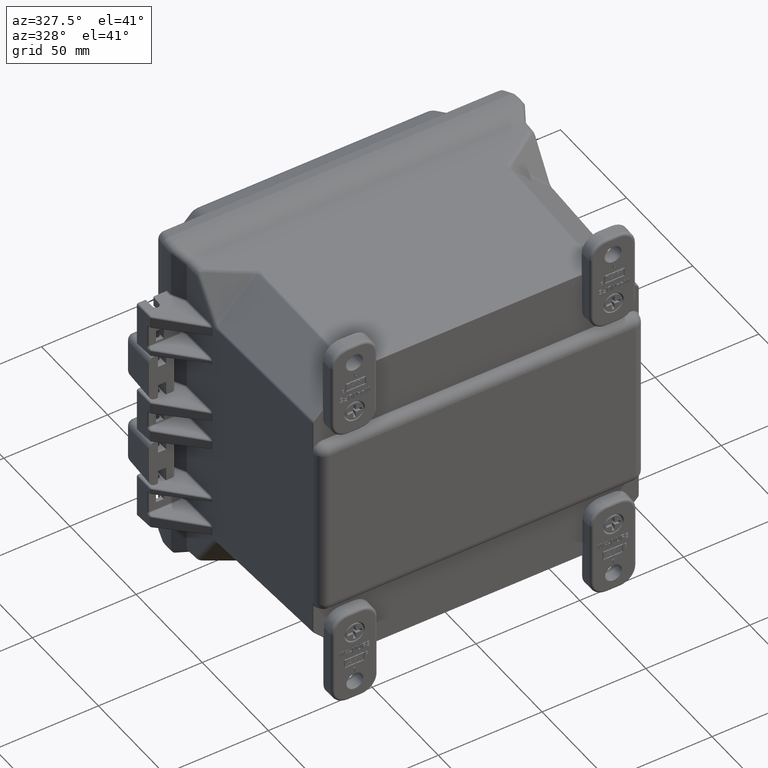
[diagram: clean part render]
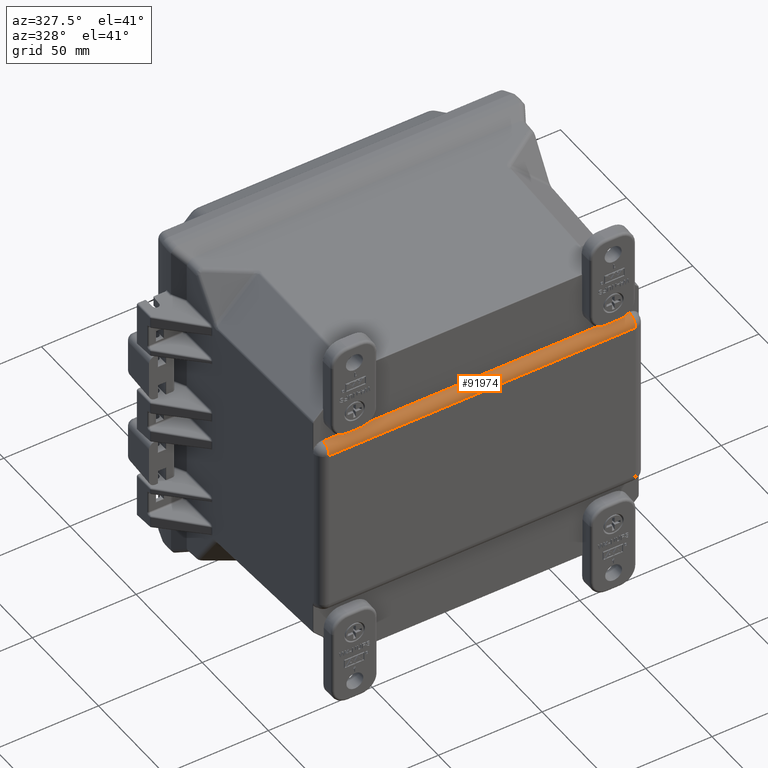
[diagram: same view with one face highlighted and labeled with its STEP entity id]
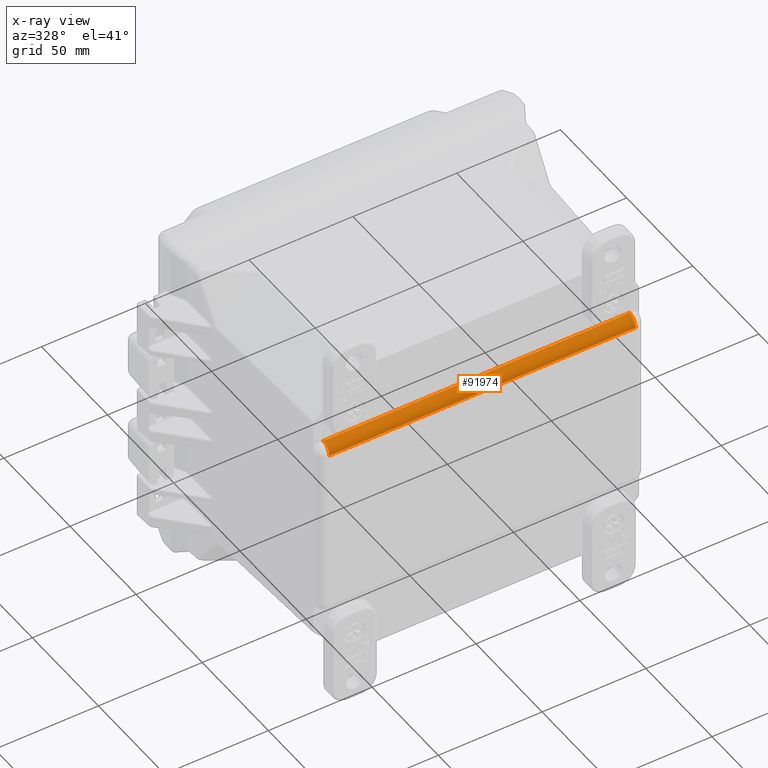
[diagram: x-ray of the same camera — body ghosted, the highlighted face saturated]
A machine part, auxiliary view. The second image highlights one B-rep face of the part: STEP entity #91974.
The next image is the same camera in x-ray: the body ghosted, the highlighted face saturated — about 0% of this face is hidden behind the body in this view.
In plain terms, the highlighted cylindrical surface (edge-blend (fillet) strip) has radius 4.7498 mm, axis along (-1, 0, 0).
Its self-contained STEP definition (entity closure, byte-faithful):
#400 = ORIENTED_EDGE ( 'NONE', *, *, #31882, .F. ) ;
#1515 = LINE ( 'NONE', #12999, #91353 ) ;
#4472 = DIRECTION ( 'NONE',  ( -2.921762560068731800E-015, 0.0000000000000000000, 1.000000000000000000 ) ) ;
#7153 = AXIS2_PLACEMENT_3D ( 'NONE', #108814, #56642, #4472 ) ;
#8992 = VERTEX_POINT ( 'NONE', #104819 ) ;
#11785 = AXIS2_PLACEMENT_3D ( 'NONE', #37834, #98680, #46591 ) ;
#12999 = CARTESIAN_POINT ( 'NONE',  ( -4.715929038281982100, -3.950960396039604500, 1.755966535842203200 ) ) ;
#15125 = CARTESIAN_POINT ( 'NONE',  ( -3.085390892018623300, -4.125000000000000000, 1.569416199111076900 ) ) ;
#16096 = DIRECTION ( 'NONE',  ( -1.000000000000000000, 0.0000000000000000000, 0.0000000000000000000 ) ) ;
#22128 = ORIENTED_EDGE ( 'NONE', *, *, #25744, .F. ) ;
#23419 = CYLINDRICAL_SURFACE ( 'NONE', #25911, 0.1869999999999999400 ) ;
#24837 = DIRECTION ( 'NONE',  ( 0.0000000000000000000, 0.0000000000000000000, 1.000000000000000000 ) ) ;
#25744 = EDGE_CURVE ( 'NONE', #64997, #8992, #61002, .T. ) ;
#25911 = AXIS2_PLACEMENT_3D ( 'NONE', #50713, #16096, #24837 ) ;
#31882 = EDGE_CURVE ( 'NONE', #8992, #65797, #77837, .T. ) ;
#32245 = EDGE_CURVE ( 'NONE', #38422, #65797, #1515, .T. ) ;
#37834 = CARTESIAN_POINT ( 'NONE',  ( 2.904807091129701900, -3.937999999999999700, 1.569416199111076900 ) ) ;
#38422 = VERTEX_POINT ( 'NONE', #46638 ) ;
#46591 = DIRECTION ( 'NONE',  ( 0.0000000000000000000, 0.0000000000000000000, -1.000000000000000000 ) ) ;
#46638 = CARTESIAN_POINT ( 'NONE',  ( 2.904807091129701900, -3.950960396039604500, 1.755966535842203200 ) ) ;
#50713 = CARTESIAN_POINT ( 'NONE',  ( -4.715929038281982100, -3.937999999999999700, 1.569416199111076900 ) ) ;
#56642 = DIRECTION ( 'NONE',  ( -1.000000000000000000, -0.0000000000000000000, -2.923543503779729900E-015 ) ) ;
#56996 = EDGE_LOOP ( 'NONE', ( #68046, #91032, #400, #22128 ) ) ;
#58299 = VECTOR ( 'NONE', #111025, 39.37007874015748100 ) ;
#61002 = LINE ( 'NONE', #15125, #58299 ) ;
#63312 = CARTESIAN_POINT ( 'NONE',  ( -2.904807091129700100, -3.950960396039604500, 1.755966535842203200 ) ) ;
#64997 = VERTEX_POINT ( 'NONE', #65850 ) ;
#65797 = VERTEX_POINT ( 'NONE', #63312 ) ;
#65850 = CARTESIAN_POINT ( 'NONE',  ( 2.904807091129701900, -4.125000000000000000, 1.569416199111076900 ) ) ;
#68046 = ORIENTED_EDGE ( 'NONE', *, *, #75520, .T. ) ;
#69656 = CIRCLE ( 'NONE', #11785, 0.1869999999999999400 ) ;
#69664 = FACE_OUTER_BOUND ( 'NONE', #56996, .T. ) ;
#75520 = EDGE_CURVE ( 'NONE', #64997, #38422, #69656, .T. ) ;
#77837 = CIRCLE ( 'NONE', #7153, 0.1869999999999999400 ) ;
#91032 = ORIENTED_EDGE ( 'NONE', *, *, #32245, .T. ) ;
#91312 = DIRECTION ( 'NONE',  ( -1.000000000000000000, 0.0000000000000000000, 0.0000000000000000000 ) ) ;
#91353 = VECTOR ( 'NONE', #91312, 39.37007874015748100 ) ;
#91974 = ADVANCED_FACE ( 'NONE', ( #69664 ), #23419, .T. ) ;
#98680 = DIRECTION ( 'NONE',  ( -1.000000000000000000, -0.0000000000000000000, -0.0000000000000000000 ) ) ;
#104819 = CARTESIAN_POINT ( 'NONE',  ( -2.904807091129699700, -4.125000000000000000, 1.569416199111076900 ) ) ;
#108814 = CARTESIAN_POINT ( 'NONE',  ( -2.904807091129699700, -3.937999999999999700, 1.569416199111076900 ) ) ;
#111025 = DIRECTION ( 'NONE',  ( -1.000000000000000000, -0.0000000000000000000, 0.0000000000000000000 ) ) ;